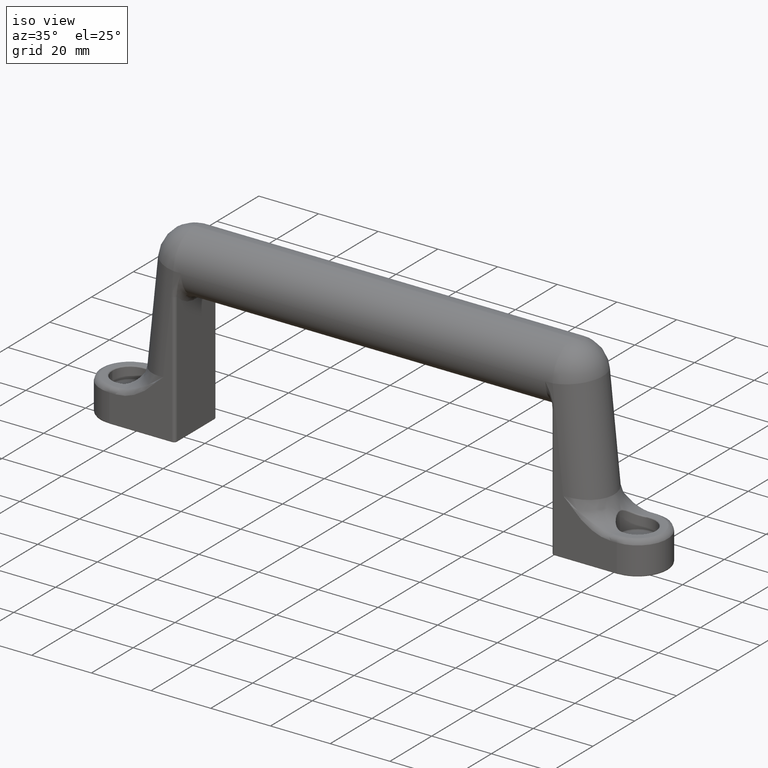
[diagram: clean part render]
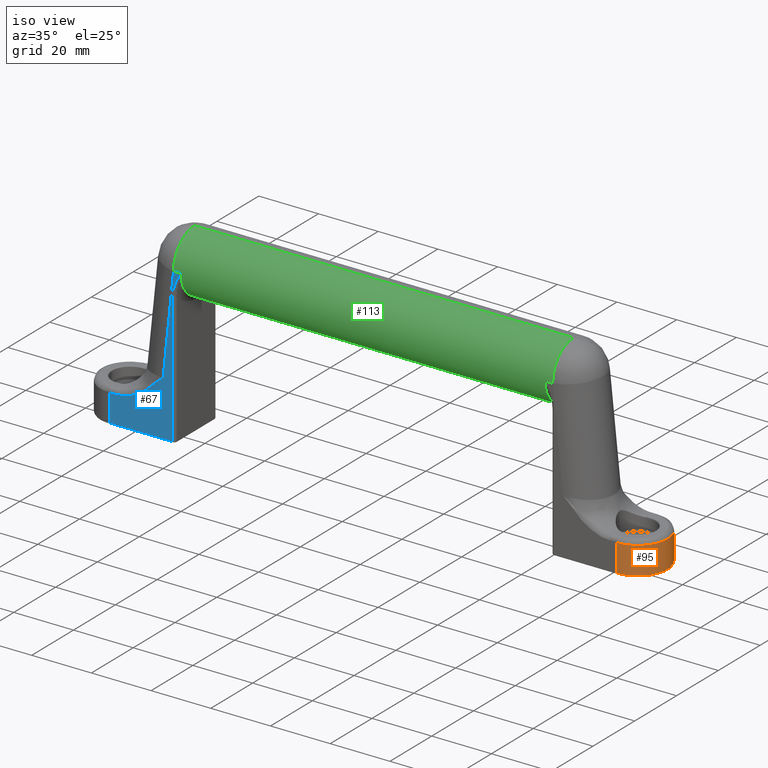
[diagram: same view with three faces highlighted in distinct colors, each labeled with its STEP entity id]
A machine part, iso view with three faces highlighted in distinct colors.
Their STEP definitions:

[orange] entity #95 — the highlighted cylindrical surface (edge-blend (fillet) strip) has radius 10 mm, axis along (-0, -0, -1).
#95=ADVANCED_FACE('',(#677),#676,.T.);
#676=CYLINDRICAL_SURFACE('',#2334,1.00000000000E+01);
#677=FACE_OUTER_BOUND('',#2335,.T.);
#2331=CARTESIAN_POINT('',(8.50000000007E+01,6.93889390391E-15,0.00000000000E+00));
#2332=DIRECTION('',(-0.00000000000E+00,-0.00000000000E+00,-1.00000000000E+00));
#2333=DIRECTION('',(-1.00000000000E+00,-1.22464679915E-16,0.00000000000E+00));
#2334=AXIS2_PLACEMENT_3D('',#2331,#2332,#2333);
#2335=EDGE_LOOP('',(#2864,#2865,#2866,#2867));
#2864=ORIENTED_EDGE('',*,*,#3130,.T.);
#2865=ORIENTED_EDGE('',*,*,#3102,.F.);
#2866=ORIENTED_EDGE('',*,*,#3131,.T.);
#2867=ORIENTED_EDGE('',*,*,#2996,.F.);
#2996=EDGE_CURVE('',#3241,#3227,#3248,.T.);
#3102=EDGE_CURVE('',#3932,#3952,#3953,.T.);
#3130=EDGE_CURVE('',#3241,#3952,#4136,.T.);
#3131=EDGE_CURVE('',#3932,#3227,#4142,.T.);
#3227=VERTEX_POINT('',#4419);
#3241=VERTEX_POINT('',#4429);
#3248=CIRCLE('',#4437,1.00000000000E+01);
#3932=VERTEX_POINT('',#5133);
#3952=VERTEX_POINT('',#5145);
#3953=CIRCLE('',#5149,1.00000000000E+01);
#4136=LINE('',#5266,#5267);
#4142=LINE('',#5269,#5270);
#4419=CARTESIAN_POINT('',(8.50000000007E+01,-1.00000000000E+01,-5.17000000000E+01));
#4429=CARTESIAN_POINT('',(8.50000000007E+01,1.00000000000E+01,-5.17000000000E+01));
#4434=CARTESIAN_POINT('',(8.50000000007E+01,6.93889390391E-15,-5.17000000000E+01));
#4435=DIRECTION('',(8.67361737991E-16,0.00000000000E+00,-1.00000000000E+00));
#4436=DIRECTION('',(-1.00000000000E+00,-0.00000000000E+00,-8.67361737991E-16));
#4437=AXIS2_PLACEMENT_3D('',#4434,#4435,#4436);
#5133=CARTESIAN_POINT('',(8.50000000007E+01,-1.00000000000E+01,-4.25000000000E+01));
#5145=CARTESIAN_POINT('',(8.50000000007E+01,1.00000000000E+01,-4.25000000000E+01));
#5146=CARTESIAN_POINT('',(8.50000000007E+01,6.93889390391E-15,-4.25000000000E+01));
#5147=DIRECTION('',(0.00000000000E+00,-0.00000000000E+00,1.00000000000E+00));
#5148=DIRECTION('',(-1.83690953073E-16,1.00000000000E+00,0.00000000000E+00));
#5149=AXIS2_PLACEMENT_3D('',#5146,#5147,#5148);
#5266=CARTESIAN_POINT('',(8.50000000007E+01,1.00000000000E+01,-5.17000000000E+01));
#5267=VECTOR('',#5268,9.20000000000E+00);
#5268=DIRECTION('',(0.00000000000E+00,0.00000000000E+00,1.00000000000E+00));
#5269=CARTESIAN_POINT('',(8.50000000007E+01,-1.00000000000E+01,-4.25000000000E+01));
#5270=VECTOR('',#5271,9.20000000000E+00);
#5271=DIRECTION('',(0.00000000000E+00,0.00000000000E+00,-1.00000000000E+00));

[blue] entity #67 — the highlighted planar face has unit normal (-0, 1, 0).
#67=ADVANCED_FACE('',(#393),#392,.F.);
#392=PLANE('',#1860);
#393=FACE_OUTER_BOUND('',#1861,.T.);
#1857=CARTESIAN_POINT('',(-8.74000000007E+01,-1.00000000000E+01,-5.68700000000E+01));
#1858=DIRECTION('',(-0.00000000000E+00,1.00000000000E+00,0.00000000000E+00));
#1859=DIRECTION('',(0.00000000000E+00,0.00000000000E+00,1.00000000000E+00));
#1860=AXIS2_PLACEMENT_3D('',#1857,#1858,#1859);
#1861=EDGE_LOOP('',(#2736,#2737,#2738,#2739,#2740,#2741,#2742,#2743));
#2736=ORIENTED_EDGE('',*,*,#3067,.T.);
#2737=ORIENTED_EDGE('',*,*,#3049,.T.);
#2738=ORIENTED_EDGE('',*,*,#3038,.T.);
#2739=ORIENTED_EDGE('',*,*,#3037,.T.);
#2740=ORIENTED_EDGE('',*,*,#3068,.T.);
#2741=ORIENTED_EDGE('',*,*,#3069,.T.);
#2742=ORIENTED_EDGE('',*,*,#3063,.T.);
#2743=ORIENTED_EDGE('',*,*,#3070,.T.);
#3037=EDGE_CURVE('',#3510,#3518,#3525,.T.);
#3038=EDGE_CURVE('',#3531,#3510,#3532,.T.);
#3049=EDGE_CURVE('',#3552,#3531,#3606,.T.);
#3063=EDGE_CURVE('',#3469,#3695,#3696,.T.);
#3067=EDGE_CURVE('',#3722,#3552,#3723,.T.);
#3068=EDGE_CURVE('',#3518,#3729,#3730,.T.);
#3069=EDGE_CURVE('',#3729,#3469,#3736,.T.);
#3070=EDGE_CURVE('',#3695,#3722,#3742,.T.);
#3469=VERTEX_POINT('',#4721);
#3510=VERTEX_POINT('',#4781);
#3518=VERTEX_POINT('',#4787);
#3525=(BOUNDED_CURVE() B_SPLINE_CURVE(3,(#4800,#4801,#4802,#4803,#4804,#4805,#4806,#4807,#4808,#4809),.UNSPECIFIED.,.F.,.F.) B_SPLINE_CURVE_WITH_KNOTS((4,2,2,2,4),(0.00000000000E+00,2.14362793166E-03,3.21544189749E-03,4.28725586332E-03,8.57451172664E-03),.UNSPECIFIED.) CURVE() GEOMETRIC_REPRESENTATION_ITEM() RATIONAL_B_SPLINE_CURVE((1.00000000000E+00,1.00000000000E+00,1.00000000000E+00,1.00000000000E+00,1.00000000000E+00,1.00000000000E+00,1.00000000000E+00,1.00000000000E+00,1.00000000000E+00,1.00000000000E+00)) REPRESENTATION_ITEM('') );
#3531=VERTEX_POINT('',#4810);
#3532=LINE('',#4811,#4812);
#3552=VERTEX_POINT('',#4823);
#3606=LINE('',#4859,#4860);
#3695=VERTEX_POINT('',#4928);
#3696=(BOUNDED_CURVE() B_SPLINE_CURVE(3,(#4929,#4930,#4931,#4932,#4933,#4934,#4935,#4936,#4937,#4938,#4939,#4940,#4941,#4942,#4943,#4944),.UNSPECIFIED.,.F.,.F.) B_SPLINE_CURVE_WITH_KNOTS((4,2,2,2,2,2,2,4),(-1.91710411060E-02,-1.43782808295E-02,-1.19819006913E-02,-9.58552055301E-03,-4.79276027650E-03,-3.59457020738E-03,-2.39638013825E-03,-0.00000000000E+00),.UNSPECIFIED.) CURVE() GEOMETRIC_REPRESENTATION_ITEM() RATIONAL_B_SPLINE_CURVE((1.00000000000E+00,1.00000000000E+00,1.00000000000E+00,1.00000000000E+00,1.00000000000E+00,1.00000000000E+00,1.00000000000E+00,1.00000000000E+00,1.00000000000E+00,1.00000000000E+00,1.00000000000E+00,1.00000000000E+00,1.00000000000E+00,1.00000000000E+00,1.00000000000E+00,1.00000000000E+00)) REPRESENTATION_ITEM('') );
#3722=VERTEX_POINT('',#4959);
#3723=LINE('',#4960,#4961);
#3729=VERTEX_POINT('',#4963);
#3730=LINE('',#4964,#4965);
#3736=LINE('',#4967,#4968);
#3742=LINE('',#4970,#4971);
#4721=CARTESIAN_POINT('',(-6.69634879427E+01,-1.00000000000E+01,-3.30000000000E+01));
#4781=CARTESIAN_POINT('',(-6.40000000008E+01,-1.00000000000E+01,-7.93725393319E+00));
#4787=CARTESIAN_POINT('',(-6.10000000008E+01,-1.00000000000E+01,1.99493199737E-13));
#4800=CARTESIAN_POINT('',(-6.40000000008E+01,-1.00000000000E+01,-7.93725393319E+00));
#4801=CARTESIAN_POINT('',(-6.40000000008E+01,-1.00000000000E+01,-7.21299264572E+00));
#4802=CARTESIAN_POINT('',(-6.38891217871E+01,-1.00000000000E+01,-6.50708075131E+00));
#4803=CARTESIAN_POINT('',(-6.36208358758E+01,-1.00000000000E+01,-5.46508783659E+00));
#4804=CARTESIAN_POINT('',(-6.35133612974E+01,-1.00000000000E+01,-5.11970987753E+00));
#4805=CARTESIAN_POINT('',(-6.32736878914E+01,-1.00000000000E+01,-4.44367860424E+00));
#4806=CARTESIAN_POINT('',(-6.31412365134E+01,-1.00000000000E+01,-4.11177019079E+00));
#4807=CARTESIAN_POINT('',(-6.24315408661E+01,-1.00000000000E+01,-2.47519495183E+00));
#4808=CARTESIAN_POINT('',(-6.17145417518E+01,-1.00000000000E+01,-1.23762467891E+00));
#4809=CARTESIAN_POINT('',(-6.10000000008E+01,-1.00000000000E+01,2.00317623386E-13));
#4810=CARTESIAN_POINT('',(-6.40000000008E+01,-1.00000000000E+01,-5.17000000000E+01));
#4811=CARTESIAN_POINT('',(-6.40000000008E+01,-1.00000000000E+01,-5.17000000000E+01));
#4812=VECTOR('',#4813,4.37627460668E+01);
#4813=DIRECTION('',(0.00000000000E+00,0.00000000000E+00,1.00000000000E+00));
#4823=CARTESIAN_POINT('',(-8.50000000007E+01,-1.00000000000E+01,-5.17000000000E+01));
#4859=CARTESIAN_POINT('',(-8.50000000007E+01,-1.00000000000E+01,-5.17000000000E+01));
#4860=VECTOR('',#4861,2.09999999999E+01);
#4861=DIRECTION('',(1.00000000000E+00,0.00000000000E+00,-1.01506105109E-15));
#4928=CARTESIAN_POINT('',(-8.29175174382E+01,-1.00000000000E+01,-4.25000000000E+01));
#4929=CARTESIAN_POINT('',(-6.69634879427E+01,-1.00000000000E+01,-3.30000000000E+01));
#4930=CARTESIAN_POINT('',(-6.80680076109E+01,-1.00000000000E+01,-3.41542615624E+01));
#4931=CARTESIAN_POINT('',(-6.91710068935E+01,-1.00000000000E+01,-3.53069316851E+01));
#4932=CARTESIAN_POINT('',(-7.09122841627E+01,-1.00000000000E+01,-3.69488006471E+01));
#4933=CARTESIAN_POINT('',(-7.15075059785E+01,-1.00000000000E+01,-3.74818404340E+01));
#4934=CARTESIAN_POINT('',(-7.27388854618E+01,-1.00000000000E+01,-3.85015080819E+01));
#4935=CARTESIAN_POINT('',(-7.33702294933E+01,-1.00000000000E+01,-3.89840983974E+01));
#4936=CARTESIAN_POINT('',(-7.53245833126E+01,-1.00000000000E+01,-4.03268901059E+01));
#4937=CARTESIAN_POINT('',(-7.67065348961E+01,-1.00000000000E+01,-4.10845137823E+01));
#4938=CARTESIAN_POINT('',(-7.85846230142E+01,-1.00000000000E+01,-4.17693662046E+01));
#4939=CARTESIAN_POINT('',(-7.89698447975E+01,-1.00000000000E+01,-4.18934983470E+01));
#4940=CARTESIAN_POINT('',(-7.97446811405E+01,-1.00000000000E+01,-4.21083057351E+01));
#4941=CARTESIAN_POINT('',(-8.01346769322E+01,-1.00000000000E+01,-4.21993110995E+01));
#4942=CARTESIAN_POINT('',(-8.13127783222E+01,-1.00000000000E+01,-4.24207073748E+01));
#4943=CARTESIAN_POINT('',(-8.21089159565E+01,-1.00000000000E+01,-4.25000000000E+01));
#4944=CARTESIAN_POINT('',(-8.29175174382E+01,-1.00000000000E+01,-4.25000000000E+01));
#4959=CARTESIAN_POINT('',(-8.50000000007E+01,-1.00000000000E+01,-4.25000000000E+01));
#4960=CARTESIAN_POINT('',(-8.50000000007E+01,-1.00000000000E+01,-4.25000000000E+01));
#4961=VECTOR('',#4962,9.20000000000E+00);
#4962=DIRECTION('',(0.00000000000E+00,0.00000000000E+00,-1.00000000000E+00));
#4963=CARTESIAN_POINT('',(-6.34950481789E+01,-1.00000000000E+01,1.99493199737E-13));
#4964=CARTESIAN_POINT('',(-6.10000000008E+01,-1.00000000000E+01,1.99493199737E-13));
#4965=VECTOR('',#4966,2.49504817813E+00);
#4966=DIRECTION('',(-1.00000000000E+00,0.00000000000E+00,0.00000000000E+00));
#4967=CARTESIAN_POINT('',(-6.34950481789E+01,-1.00000000000E+01,1.98951966013E-13));
#4968=VECTOR('',#4969,3.31817732256E+01);
#4969=DIRECTION('',(-1.04528463268E-01,0.00000000000E+00,-9.94521895368E-01));
#4970=CARTESIAN_POINT('',(-8.29175174382E+01,-1.00000000000E+01,-4.25000000000E+01));
#4971=VECTOR('',#4972,2.08248256252E+00);
#4972=DIRECTION('',(-1.00000000000E+00,0.00000000000E+00,0.00000000000E+00));

[green] entity #113 — the highlighted cylindrical surface (edge-blend (fillet) strip) has radius 10 mm, axis along (-1, -0, -0).
#113=ADVANCED_FACE('',(#857),#856,.T.);
#856=CYLINDRICAL_SURFACE('',#2592,1.00000000000E+01);
#857=FACE_OUTER_BOUND('',#2593,.T.);
#2589=CARTESIAN_POINT('',(0.00000000000E+00,6.93889390391E-15,1.99493199737E-13));
#2590=DIRECTION('',(-1.00000000000E+00,-0.00000000000E+00,-0.00000000000E+00));
#2591=DIRECTION('',(0.00000000000E+00,0.00000000000E+00,1.00000000000E+00));
#2592=AXIS2_PLACEMENT_3D('',#2589,#2590,#2591);
#2593=EDGE_LOOP('',(#2950,#2951,#2952,#2953,#2954,#2955,#2956,#2957));
#2950=ORIENTED_EDGE('',*,*,#3123,.F.);
#2951=ORIENTED_EDGE('',*,*,#3133,.T.);
#2952=ORIENTED_EDGE('',*,*,#3127,.F.);
#2953=ORIENTED_EDGE('',*,*,#3156,.T.);
#2954=ORIENTED_EDGE('',*,*,#3088,.T.);
#2955=ORIENTED_EDGE('',*,*,#3068,.F.);
#2956=ORIENTED_EDGE('',*,*,#3086,.T.);
#2957=ORIENTED_EDGE('',*,*,#3157,.F.);
#3068=EDGE_CURVE('',#3518,#3729,#3730,.T.);
#3086=EDGE_CURVE('',#3518,#3839,#3846,.T.);
#3088=EDGE_CURVE('',#3859,#3729,#3860,.T.);
#3123=EDGE_CURVE('',#3193,#4090,#4091,.T.);
#3127=EDGE_CURVE('',#4111,#4104,#4118,.T.);
#3133=EDGE_CURVE('',#3193,#4104,#4154,.T.);
#3156=EDGE_CURVE('',#4111,#3859,#4300,.T.);
#3157=EDGE_CURVE('',#4090,#3839,#4306,.T.);
#3193=VERTEX_POINT('',#4383);
#3518=VERTEX_POINT('',#4787);
#3729=VERTEX_POINT('',#4963);
#3730=LINE('',#4964,#4965);
#3839=VERTEX_POINT('',#5031);
#3846=CIRCLE('',#5039,1.00000000000E+01);
#3859=VERTEX_POINT('',#5045);
#3860=CIRCLE('',#5049,1.00000000000E+01);
#4090=VERTEX_POINT('',#5236);
#4091=CIRCLE('',#5240,1.00000000000E+01);
#4104=VERTEX_POINT('',#5246);
#4111=VERTEX_POINT('',#5251);
#4118=CIRCLE('',#5259,1.00000000000E+01);
#4154=LINE('',#5275,#5276);
#4300=(BOUNDED_CURVE() B_SPLINE_CURVE(1,(#5358,#5359),.UNSPECIFIED.,.F.,.F.) B_SPLINE_CURVE_WITH_KNOTS((2,2),(6.80317943912E-02,9.31968205644E-01),.UNSPECIFIED.) CURVE() GEOMETRIC_REPRESENTATION_ITEM() RATIONAL_B_SPLINE_CURVE((1.00000000000E+00,1.00000000000E+00)) REPRESENTATION_ITEM('') );
#4306=(BOUNDED_CURVE() B_SPLINE_CURVE(1,(#5360,#5361),.UNSPECIFIED.,.F.,.F.) B_SPLINE_CURVE_WITH_KNOTS((2,2),(8.50060547460E-02,9.14993945254E-01),.UNSPECIFIED.) CURVE() GEOMETRIC_REPRESENTATION_ITEM() RATIONAL_B_SPLINE_CURVE((7.50000000000E-01,7.50000000000E-01)) REPRESENTATION_ITEM('') );
#4383=CARTESIAN_POINT('',(6.10000000008E+01,-1.00000000000E+01,1.99493199737E-13));
#4787=CARTESIAN_POINT('',(-6.10000000008E+01,-1.00000000000E+01,1.99493199737E-13));
#4963=CARTESIAN_POINT('',(-6.34950481789E+01,-1.00000000000E+01,1.99493199737E-13));
#4964=CARTESIAN_POINT('',(-6.10000000008E+01,-1.00000000000E+01,1.99493199737E-13));
#4965=VECTOR('',#4966,2.49504817813E+00);
#4966=DIRECTION('',(-1.00000000000E+00,0.00000000000E+00,0.00000000000E+00));
#5031=CARTESIAN_POINT('',(-6.10000000008E+01,-7.15545080454E-07,-1.00000000000E+01));
#5036=CARTESIAN_POINT('',(-6.10000000008E+01,6.93889390391E-15,1.99493199737E-13));
#5037=DIRECTION('',(1.00000000000E+00,0.00000000000E+00,0.00000000000E+00));
#5038=DIRECTION('',(-0.00000000000E+00,-0.00000000000E+00,1.00000000000E+00));
#5039=AXIS2_PLACEMENT_3D('',#5036,#5037,#5038);
#5045=CARTESIAN_POINT('',(-6.34950481789E+01,6.93889390391E-15,1.00000000000E+01));
#5046=CARTESIAN_POINT('',(-6.34950481789E+01,6.93889390391E-15,1.99493199737E-13));
#5047=DIRECTION('',(1.00000000000E+00,0.00000000000E+00,-0.00000000000E+00));
#5048=DIRECTION('',(-0.00000000000E+00,-0.00000000000E+00,-1.00000000000E+00));
#5049=AXIS2_PLACEMENT_3D('',#5046,#5047,#5048);
#5236=CARTESIAN_POINT('',(6.10000000008E+01,5.71428755008E-15,-1.00000000000E+01));
#5237=CARTESIAN_POINT('',(6.10000000008E+01,6.93889390391E-15,1.99493199737E-13));
#5238=DIRECTION('',(1.00000000000E+00,0.00000000000E+00,0.00000000000E+00));
#5239=DIRECTION('',(-0.00000000000E+00,-0.00000000000E+00,1.00000000000E+00));
#5240=AXIS2_PLACEMENT_3D('',#5237,#5238,#5239);
#5246=CARTESIAN_POINT('',(6.34950481789E+01,-1.00000000000E+01,1.99493199737E-13));
#5251=CARTESIAN_POINT('',(6.34950481789E+01,6.93889390391E-15,1.00000000000E+01));
#5256=CARTESIAN_POINT('',(6.34950481789E+01,6.93889390391E-15,1.99493199737E-13));
#5257=DIRECTION('',(1.00000000000E+00,0.00000000000E+00,-0.00000000000E+00));
#5258=DIRECTION('',(-0.00000000000E+00,-0.00000000000E+00,-1.00000000000E+00));
#5259=AXIS2_PLACEMENT_3D('',#5256,#5257,#5258);
#5275=CARTESIAN_POINT('',(6.10000000008E+01,-1.00000000000E+01,1.99493199737E-13));
#5276=VECTOR('',#5277,2.49504817813E+00);
#5277=DIRECTION('',(1.00000000000E+00,0.00000000000E+00,0.00000000000E+00));
#5358=CARTESIAN_POINT('',(6.34950481660E+01,6.93889390391E-15,1.00000000000E+01));
#5359=CARTESIAN_POINT('',(-6.34950481712E+01,6.93889390391E-15,1.00000000000E+01));
#5360=CARTESIAN_POINT('',(6.10000000008E+01,6.51330841113E-15,-1.00000000000E+01));
#5361=CARTESIAN_POINT('',(-6.10000000008E+01,6.51330841113E-15,-1.00000000000E+01));